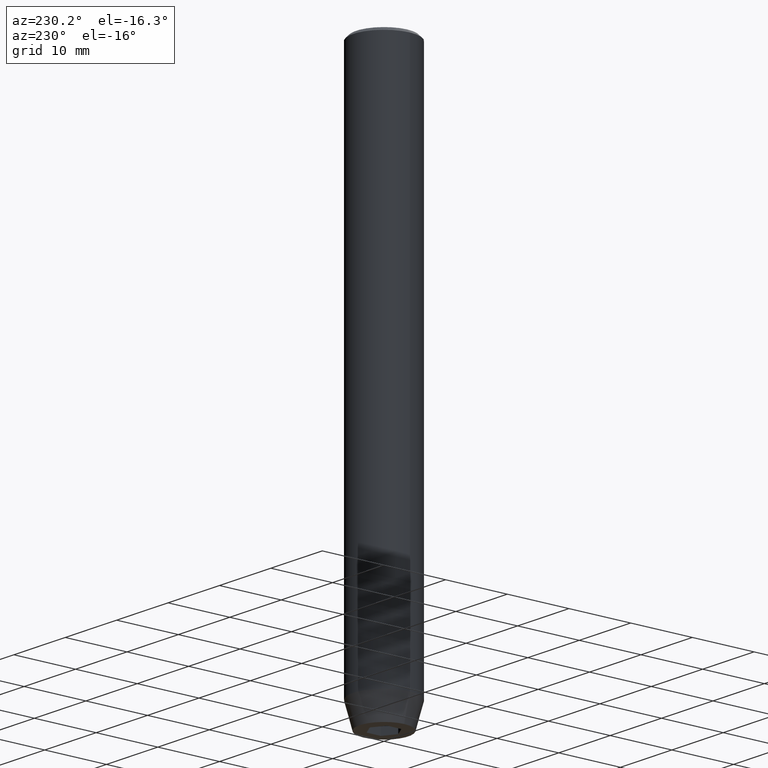
[diagram: clean part render]
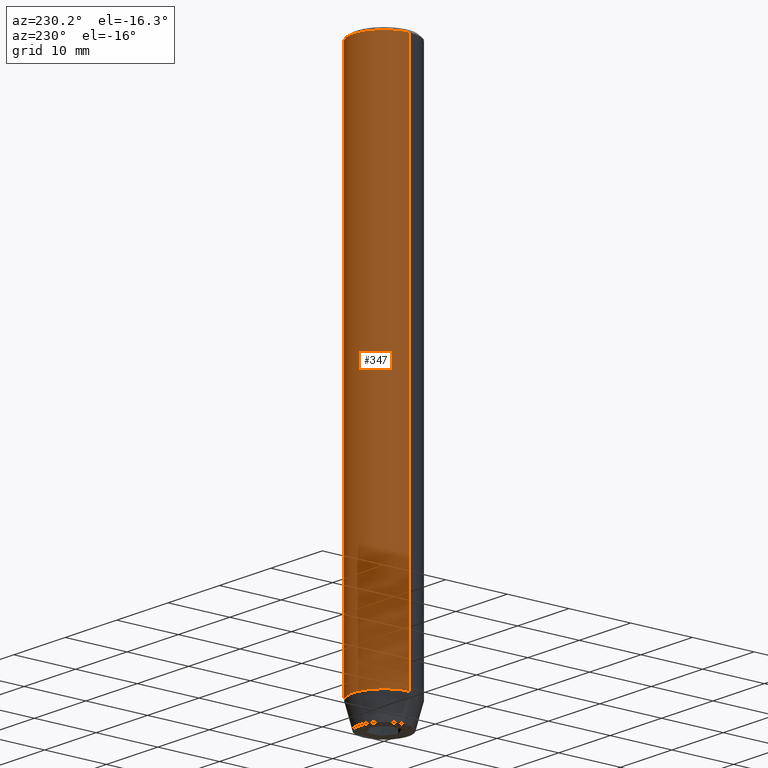
[diagram: same view with one face highlighted and labeled with its STEP entity id]
A machine part, auxiliary view. The second image highlights one B-rep face of the part: STEP entity #347.
In plain terms, the highlighted cylindrical surface (partial cylindrical patch) has radius 5 mm, axis along (-0, -0, 1).
Its self-contained STEP definition (entity closure, byte-faithful):
#8 = ORIENTED_EDGE ( 'NONE', *, *, #153, .T. ) ;
#10 = ORIENTED_EDGE ( 'NONE', *, *, #163, .T. ) ;
#12 = DIRECTION ( 'NONE',  ( 1.000000000000000000, 0.000000000000000000, 0.000000000000000000 ) ) ;
#64 = VERTEX_POINT ( 'NONE', #134 ) ;
#67 = CARTESIAN_POINT ( 'NONE',  ( 0.000000000000000000, 0.000000000000000000, -0.4999999999999857891 ) ) ;
#74 = CIRCLE ( 'NONE', #335, 5.000000000000000000 ) ;
#99 = CARTESIAN_POINT ( 'NONE',  ( -5.000000000000000000, 6.123233995736766282E-16, -0.4999999999999857891 ) ) ;
#134 = CARTESIAN_POINT ( 'NONE',  ( 5.000000000000000000, 0.000000000000000000, -0.4999999999999857891 ) ) ;
#140 = VERTEX_POINT ( 'NONE', #317 ) ;
#147 = CIRCLE ( 'NONE', #213, 5.000000000000000000 ) ;
#153 = EDGE_CURVE ( 'NONE', #140, #167, #74, .T. ) ;
#163 = EDGE_CURVE ( 'NONE', #167, #194, #240, .T. ) ;
#164 = EDGE_CURVE ( 'NONE', #140, #64, #555, .T. ) ;
#167 = VERTEX_POINT ( 'NONE', #416 ) ;
#182 = DIRECTION ( 'NONE',  ( -0.000000000000000000, -0.000000000000000000, 1.000000000000000000 ) ) ;
#189 = ORIENTED_EDGE ( 'NONE', *, *, #164, .F. ) ;
#192 = CARTESIAN_POINT ( 'NONE',  ( -5.000000000000000000, 6.123233995736766282E-16, 0.000000000000000000 ) ) ;
#194 = VERTEX_POINT ( 'NONE', #99 ) ;
#210 = CYLINDRICAL_SURFACE ( 'NONE', #367, 5.000000000000000000 ) ;
#213 = AXIS2_PLACEMENT_3D ( 'NONE', #67, #251, #424 ) ;
#238 = VECTOR ( 'NONE', #459, 1000.000000000000000 ) ;
#240 = LINE ( 'NONE', #192, #387 ) ;
#251 = DIRECTION ( 'NONE',  ( 0.000000000000000000, 0.000000000000000000, -1.000000000000000000 ) ) ;
#257 = EDGE_CURVE ( 'NONE', #194, #64, #147, .T. ) ;
#293 = EDGE_LOOP ( 'NONE', ( #8, #10, #382, #189 ) ) ;
#312 = FACE_OUTER_BOUND ( 'NONE', #293, .T. ) ;
#317 = CARTESIAN_POINT ( 'NONE',  ( 5.000000000000000000, 0.000000000000000000, -86.00000000000000000 ) ) ;
#322 = CARTESIAN_POINT ( 'NONE',  ( 5.000000000000000000, 0.000000000000000000, 0.000000000000000000 ) ) ;
#328 = CARTESIAN_POINT ( 'NONE',  ( 0.000000000000000000, 0.000000000000000000, -86.00000000000000000 ) ) ;
#335 = AXIS2_PLACEMENT_3D ( 'NONE', #328, #182, #12 ) ;
#347 = ADVANCED_FACE ( 'NONE', ( #312 ), #210, .T. ) ;
#367 = AXIS2_PLACEMENT_3D ( 'NONE', #400, #483, #571 ) ;
#378 = DIRECTION ( 'NONE',  ( -0.000000000000000000, -0.000000000000000000, 1.000000000000000000 ) ) ;
#382 = ORIENTED_EDGE ( 'NONE', *, *, #257, .T. ) ;
#387 = VECTOR ( 'NONE', #378, 1000.000000000000000 ) ;
#400 = CARTESIAN_POINT ( 'NONE',  ( 0.000000000000000000, 0.000000000000000000, 0.000000000000000000 ) ) ;
#416 = CARTESIAN_POINT ( 'NONE',  ( -5.000000000000000000, 6.123233995736766282E-16, -86.00000000000000000 ) ) ;
#424 = DIRECTION ( 'NONE',  ( 1.000000000000000000, 0.000000000000000000, 0.000000000000000000 ) ) ;
#459 = DIRECTION ( 'NONE',  ( -0.000000000000000000, -0.000000000000000000, 1.000000000000000000 ) ) ;
#483 = DIRECTION ( 'NONE',  ( -0.000000000000000000, -0.000000000000000000, 1.000000000000000000 ) ) ;
#555 = LINE ( 'NONE', #322, #238 ) ;
#571 = DIRECTION ( 'NONE',  ( 1.000000000000000000, 0.000000000000000000, 0.000000000000000000 ) ) ;